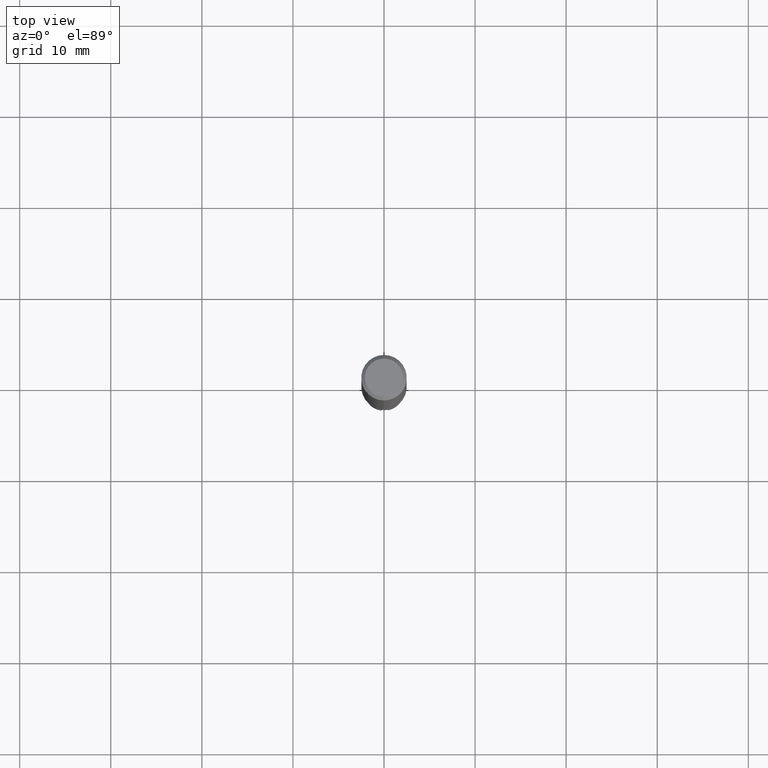
[diagram: clean part render]
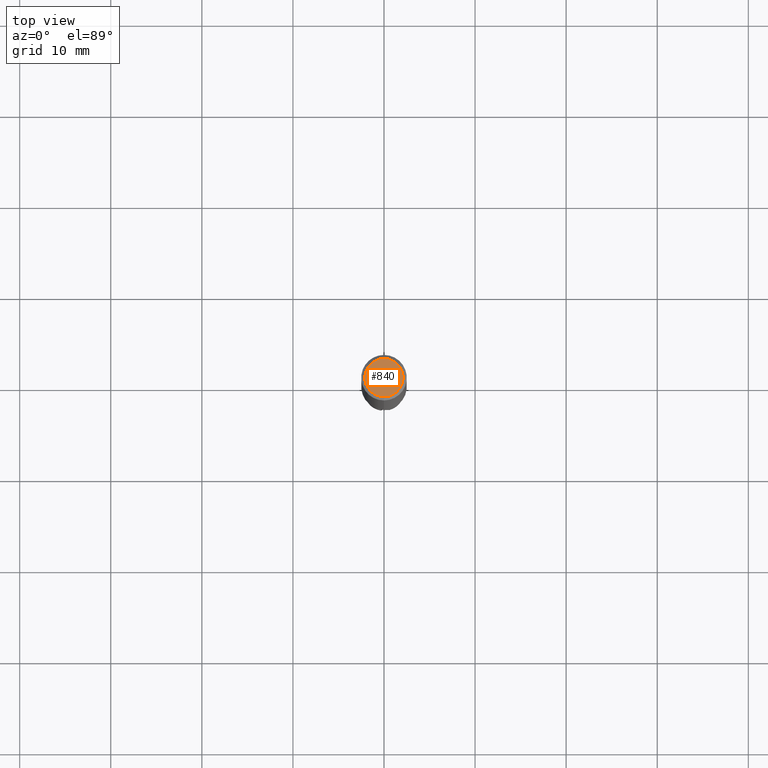
[diagram: same view with one face highlighted and labeled with its STEP entity id]
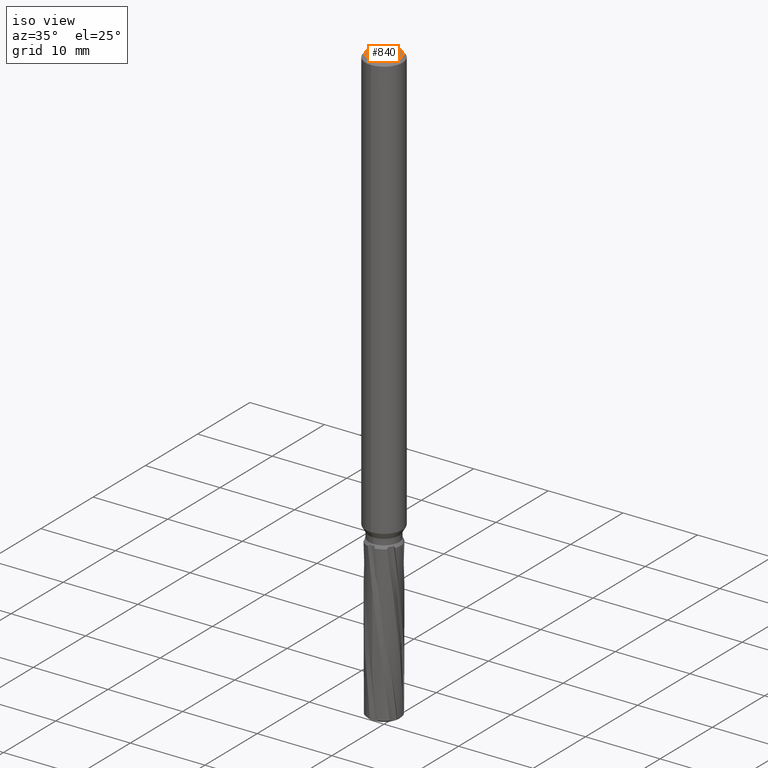
[diagram: same view with one face highlighted and labeled with its STEP entity id]
A machine part, top view. The second image highlights one B-rep face of the part: STEP entity #840.
A second angle (iso view) of the same face is appended — the face is thin or edge-on in the first view.
In plain terms, the highlighted planar face has unit normal (-0, 0, 1).
Its self-contained STEP definition (entity closure, byte-faithful):
#764=EDGE_CURVE('',#1622,#1610,#2023,.T.);
#840=ADVANCED_FACE('',(#2102),#2103,.T.);
#1610=VERTEX_POINT('',#2946);
#1622=VERTEX_POINT('',#2959);
#1818=EDGE_CURVE('',#1610,#1622,#3173,.T.);
#2023=CIRCLE('',#4048,2.1);
#2102=FACE_OUTER_BOUND('',#4499,.T.);
#2103=PLANE('',#4500);
#2946=CARTESIAN_POINT('',(2.57167334302699E-016,-2.1,0.0));
#2959=CARTESIAN_POINT('',(0.0,2.1,0.0));
#3173=CIRCLE('',#11355,2.1);
#4048=AXIS2_PLACEMENT_3D('',#12088,#12089,#12090);
#4499=EDGE_LOOP('',(#12132,#12133));
#4500=AXIS2_PLACEMENT_3D('',#12134,#12135,#12136);
#11355=AXIS2_PLACEMENT_3D('',#13165,#13166,#13167);
#12088=CARTESIAN_POINT('',(0.0,0.0,0.0));
#12089=DIRECTION('',(0.0,0.0,-1.0));
#12090=DIRECTION('',(0.0,1.0,0.0));
#12132=ORIENTED_EDGE('',*,*,#764,.F.);
#12133=ORIENTED_EDGE('',*,*,#1818,.F.);
#12134=CARTESIAN_POINT('',(0.0,1.05,0.0));
#12135=DIRECTION('',(-0.0,0.0,1.0));
#12136=DIRECTION('',(0.0,-1.0,0.0));
#13165=CARTESIAN_POINT('',(0.0,0.0,0.0));
#13166=DIRECTION('',(0.0,0.0,-1.0));
#13167=DIRECTION('',(0.0,1.0,0.0));